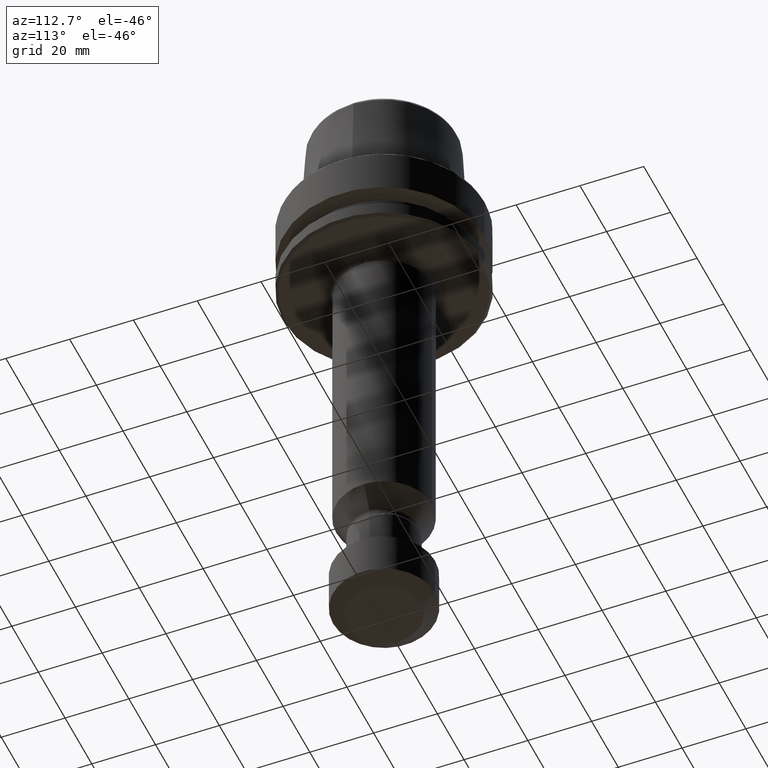
[diagram: clean part render]
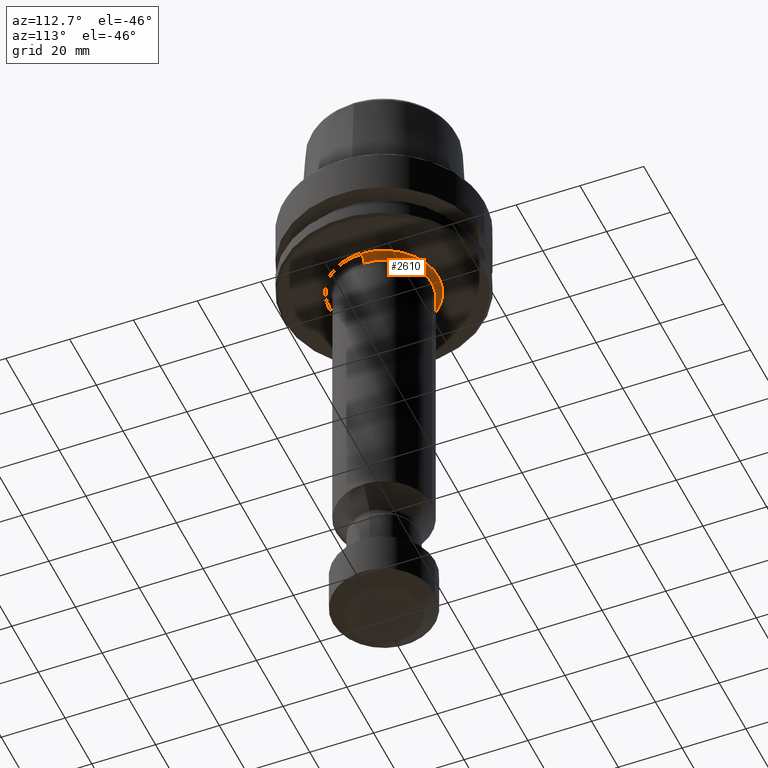
[diagram: same view with one face highlighted and labeled with its STEP entity id]
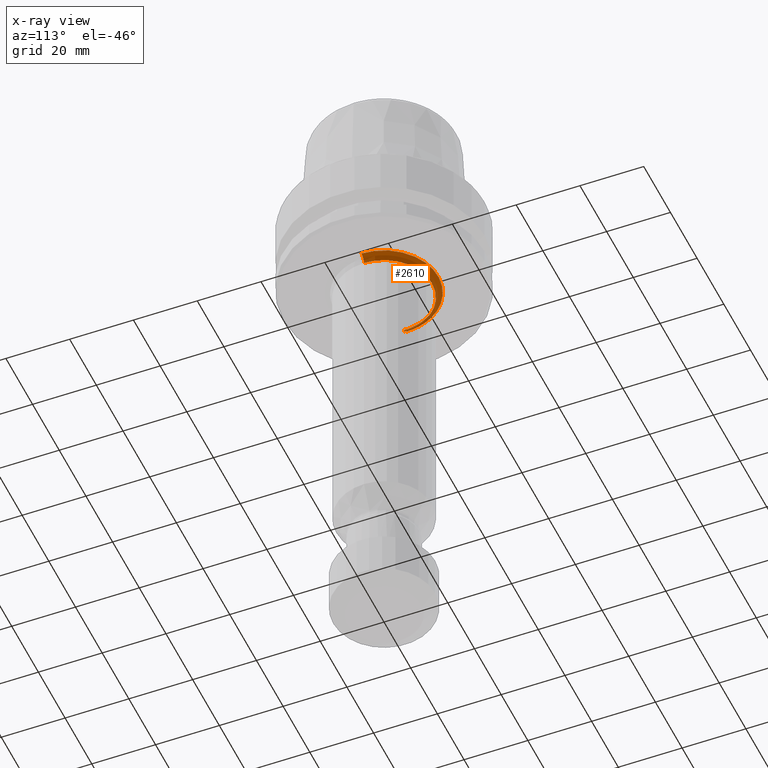
[diagram: x-ray of the same camera — body ghosted, the highlighted face saturated]
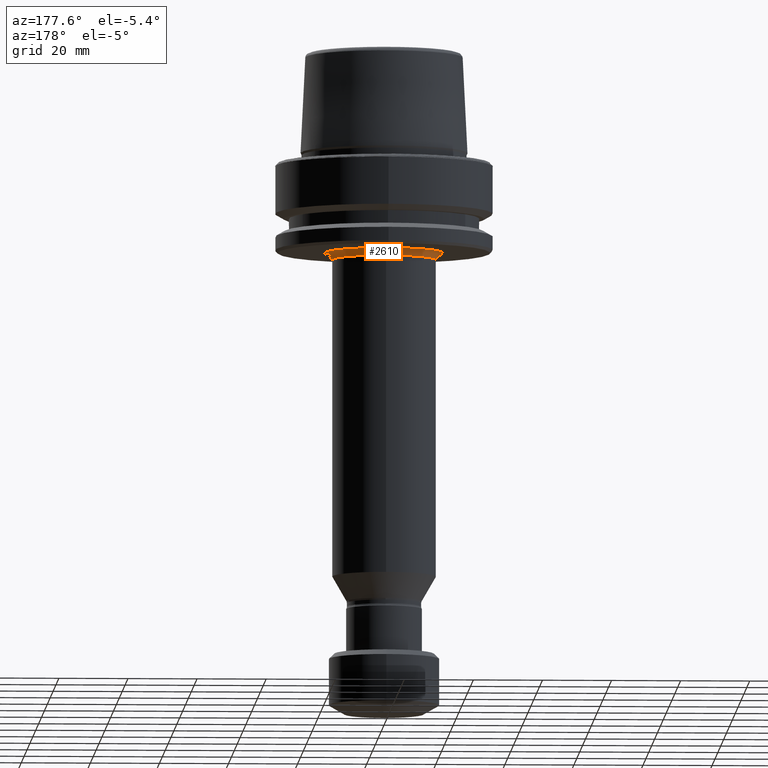
[diagram: same view with one face highlighted and labeled with its STEP entity id]
A machine part, auxiliary view. The second image highlights one B-rep face of the part: STEP entity #2610.
The next image is the same camera in x-ray: the body ghosted, the highlighted face saturated — about 8% of this face is hidden behind the body in this view.
A second angle (auxiliary view) of the same face is appended — the face is thin or edge-on in the first view.
In plain terms, the highlighted face is a freeform B-spline surface patch.
Its self-contained STEP definition (entity closure, byte-faithful):
#3 = CIRCLE ( 'NONE', #335, 15.00000000000000000 ) ;
#23 = CARTESIAN_POINT ( 'NONE',  ( -9.647156264525051500, 13.99763926153691100, -26.00000000000001100 ) ) ;
#42 = CARTESIAN_POINT ( 'NONE',  ( -11.40718896748278700, 12.60828393399529700, -26.00000000000000400 ) ) ;
#66 = CARTESIAN_POINT ( 'NONE',  ( -9.940187602023494100, 13.79468661339041600, -26.00000000000000700 ) ) ;
#88 = ORIENTED_EDGE ( 'NONE', *, *, #1571, .T. ) ;
#92 = CARTESIAN_POINT ( 'NONE',  ( -10.32283768817465500, 13.51352612423026800, -26.00000000000000000 ) ) ;
#94 = CARTESIAN_POINT ( 'NONE',  ( 15.00000000000000000, 0.0000000000000000000, -26.82842712599999800 ) ) ;
#104 = CARTESIAN_POINT ( 'NONE',  ( -10.75516065195249700, 13.16703087652168800, -26.00000000000000700 ) ) ;
#106 = CARTESIAN_POINT ( 'NONE',  ( 15.00000000000000000, -1.077523541144796300E-009, -27.99999999999999600 ) ) ;
#120 =( BOUNDED_CURVE ( )  B_SPLINE_CURVE ( 3, ( #2083, #586, #2444, #1287 ),
 .UNSPECIFIED., .F., .F. ) 
 B_SPLINE_CURVE_WITH_KNOTS ( ( 4, 4 ),
 ( 0.0000000000000000000, 1.000000000000000000 ),
 .UNSPECIFIED. ) 
 CURVE ( )  GEOMETRIC_REPRESENTATION_ITEM ( )  RATIONAL_B_SPLINE_CURVE ( ( 0.9565783023873429800, 0.7697947704079430900, 0.7697947703221912400, 0.9565783021300871000 ) ) 
 REPRESENTATION_ITEM ( '' )  );
#121 = CARTESIAN_POINT ( 'NONE',  ( -10.96779659965844500, 12.98916458341195900, -26.00000000000001100 ) ) ;
#123 = ORIENTED_EDGE ( 'NONE', *, *, #654, .T. ) ;
#153 = DIRECTION ( 'NONE',  ( 0.0000000000000000000, 0.0000000000000000000, 1.000000000000000000 ) ) ;
#154 = CARTESIAN_POINT ( 'NONE',  ( -11.05817081992179900, 12.91194645723877200, -26.00000000000000400 ) ) ;
#172 = EDGE_LOOP ( 'NONE', ( #88, #806, #1376, #123, #1172 ) ) ;
#185 = CARTESIAN_POINT ( 'NONE',  ( -11.11825241751721700, 12.86024776982542200, -26.00000000000000700 ) ) ;
#188 = CARTESIAN_POINT ( 'NONE',  ( -11.14944384421238300, 12.83321108289902000, -26.00000000000000400 ) ) ;
#250 = CARTESIAN_POINT ( 'NONE',  ( -11.74241451338749100, 12.29951821889429600, -26.00000000000000700 ) ) ;
#295 = CARTESIAN_POINT ( 'NONE',  ( -12.11875040131196200, 11.92378156395837300, -26.00000000000000700 ) ) ;
#309 = CARTESIAN_POINT ( 'NONE',  ( -12.46060636964964800, 11.56436640063805200, -26.00000000000000400 ) ) ;
#315 = CARTESIAN_POINT ( 'NONE',  ( -12.38149936781433000, 11.64902806564135700, -26.00000000000000000 ) ) ;
#318 = CARTESIAN_POINT ( 'NONE',  ( -12.43350442533953000, 11.59350497358883400, -26.00000000000000700 ) ) ;
#335 = AXIS2_PLACEMENT_3D ( 'NONE', #1496, #153, #1688 ) ;
#367 = CARTESIAN_POINT ( 'NONE',  ( -12.68236215214468700, 11.32441305218912400, -26.00000000000001100 ) ) ;
#371 = CARTESIAN_POINT ( 'NONE',  ( -15.17620408239110900, 7.661003371127924800, -26.00000000000000700 ) ) ;
#378 = CARTESIAN_POINT ( 'NONE',  ( -13.44610155534271600, 10.40247710365459400, -26.00000000000001100 ) ) ;
#382 = CARTESIAN_POINT ( 'NONE',  ( -13.28972600791165500, 10.60284131153130400, -26.00000000000001100 ) ) ;
#400 = CARTESIAN_POINT ( 'NONE',  ( 6.706845463135679500, 15.62269563764839700, -26.00000000000001800 ) ) ;
#414 = CARTESIAN_POINT ( 'NONE',  ( -13.52336041527243200, 10.30150266361530100, -26.00000000000000000 ) ) ;
#420 = CARTESIAN_POINT ( 'NONE',  ( -13.55627230228821400, 10.25805811729110900, -26.00000000000000400 ) ) ;
#422 = CARTESIAN_POINT ( 'NONE',  ( -15.00000000000000000, -3.691861713275960800E-009, -27.99999999999999600 ) ) ;
#432 = CARTESIAN_POINT ( 'NONE',  ( -9.612090290506479600, 14.02174557289354300, -26.00000000000001100 ) ) ;
#442 = CARTESIAN_POINT ( 'NONE',  ( -13.57816932630893300, 10.22905735611779200, -26.00000000000000700 ) ) ;
#453 = CARTESIAN_POINT ( 'NONE',  ( -13.58988373676121400, 10.21348749009063400, -26.00000000000000400 ) ) ;
#464 = CARTESIAN_POINT ( 'NONE',  ( -14.37662306357473900, 9.100880302218154600, -26.00000000000000700 ) ) ;
#469 = CARTESIAN_POINT ( 'NONE',  ( -13.92372040202458000, 9.768400300886966600, -26.00000000000000000 ) ) ;
#513 = CARTESIAN_POINT ( 'NONE',  ( -14.84782310272869100, 8.286896181649396500, -26.00000000000000700 ) ) ;
#553 = CARTESIAN_POINT ( 'NONE',  ( 15.00000000000000000, -1.077523541144796300E-009, -27.99999999999999600 ) ) ;
#558 = CARTESIAN_POINT ( 'NONE',  ( 15.82842712400000500, 0.0000000000000000000, -26.00000000100000400 ) ) ;
#562 = CARTESIAN_POINT ( 'NONE',  ( -15.22884932485959700, 7.555404176033091400, -26.00000000000000400 ) ) ;
#572 = CARTESIAN_POINT ( 'NONE',  ( -15.25122009931264700, 7.510029484869273900, -26.00000000000000400 ) ) ;
#586 = CARTESIAN_POINT ( 'NONE',  ( -15.00000000000000000, 0.0000000000000000000, -26.82842712599999800 ) ) ;
#587 = CARTESIAN_POINT ( 'NONE',  ( -15.27429668038375800, 7.462980148546568800, -26.00000000000001100 ) ) ;
#606 = CARTESIAN_POINT ( 'NONE',  ( -15.49216912477989200, 7.016095908826447800, -26.00000000000000700 ) ) ;
#616 = CARTESIAN_POINT ( 'NONE',  ( -15.26609139954375700, 7.479753492256499200, -26.00000000000000700 ) ) ;
#654 = EDGE_CURVE ( 'NONE', #2175, #656, #120, .T. ) ;
#656 = VERTEX_POINT ( 'NONE', #1682 ) ;
#701 = CARTESIAN_POINT ( 'NONE',  ( -15.78050945205662700, 6.354909413765298600, -26.00000000000000700 ) ) ;
#737 = CARTESIAN_POINT ( 'NONE',  ( -16.19762457022040200, 5.163615565036729500, -26.00000000000001400 ) ) ;
#742 = CARTESIAN_POINT ( 'NONE',  ( -12.96954360276308000, 10.99723103847711600, -25.99999999999999600 ) ) ;
#751 = CARTESIAN_POINT ( 'NONE',  ( -16.06691766936300100, 5.563972322457834400, -26.00000000000000700 ) ) ;
#777 =( BOUNDED_CURVE ( )  B_SPLINE_CURVE ( 3, ( #2439, #558, #94, #106 ),
 .UNSPECIFIED., .F., .F. ) 
 B_SPLINE_CURVE_WITH_KNOTS ( ( 4, 4 ),
 ( 0.0000000000000000000, 1.000000000000000000 ),
 .UNSPECIFIED. ) 
 CURVE ( )  GEOMETRIC_REPRESENTATION_ITEM ( )  RATIONAL_B_SPLINE_CURVE ( ( 0.9565783021300871000, 0.7697947703221912400, 0.7697947704079430900, 0.9565783023873429800 ) ) 
 REPRESENTATION_ITEM ( '' )  );
#794 = AXIS2_PLACEMENT_3D ( 'NONE', #853, #1680, #2548 ) ;
#806 = ORIENTED_EDGE ( 'NONE', *, *, #1067, .T. ) ;
#810 = CARTESIAN_POINT ( 'NONE',  ( -16.25985371870015700, 4.962215133384347600, -26.00000000000000400 ) ) ;
#819 = CARTESIAN_POINT ( 'NONE',  ( 16.99999999918119900, 0.3776924275719731900, -26.00000000000000000 ) ) ;
#836 = CARTESIAN_POINT ( 'NONE',  ( -16.30301991502808400, 4.817855767602949000, -25.99999999999999300 ) ) ;
#842 = CARTESIAN_POINT ( 'NONE',  ( 16.99999999938484100, 3.727308970728297600E-009, -26.00000000000000000 ) ) ;
#851 = CARTESIAN_POINT ( 'NONE',  ( -16.29018721745279300, 4.861209404322699400, -26.00000000000000700 ) ) ;
#853 = CARTESIAN_POINT ( 'NONE',  ( 0.0000000000000000000, 0.0000000000000000000, -27.99999999999999600 ) ) ;
#856 = CARTESIAN_POINT ( 'NONE',  ( -16.31625896462853500, 4.772824967047387900, -26.00000000000000400 ) ) ;
#863 = CARTESIAN_POINT ( 'NONE',  ( 16.98119468944758000, 0.9430413942550678300, -26.00000000000000400 ) ) ;
#867 = CARTESIAN_POINT ( 'NONE',  ( 16.92634586939123100, 1.600533258037655200, -26.00000000000001100 ) ) ;
#879 = CARTESIAN_POINT ( 'NONE',  ( 16.89069413635457600, 1.928758707258705800, -25.99999999999999600 ) ) ;
#888 = CARTESIAN_POINT ( 'NONE',  ( 16.87081143908416800, 2.092741311201646000, -26.00000000000000700 ) ) ;
#893 = CARTESIAN_POINT ( 'NONE',  ( -16.31153785267413900, 4.788938794873819100, -26.00000000000001100 ) ) ;
#903 = CARTESIAN_POINT ( 'NONE',  ( 16.86035588276091700, 2.174700083006250400, -26.00000000000000000 ) ) ;
#918 = CARTESIAN_POINT ( 'NONE',  ( -16.43971310594719500, 4.349601046917640300, -26.00000000000000000 ) ) ;
#929 = CARTESIAN_POINT ( 'NONE',  ( 16.85576474268923900, 2.209818300172448100, -26.00000000000000000 ) ) ;
#933 = CARTESIAN_POINT ( 'NONE',  ( 16.85267949656107000, 2.233228895894351100, -26.00000000000000700 ) ) ;
#938 = CARTESIAN_POINT ( 'NONE',  ( -5.590991011447757200, 16.05595171354687500, -26.00000000000000700 ) ) ;
#940 =( BOUNDED_SURFACE ( )  B_SPLINE_SURFACE ( 3, 3, ( 
 ( #2228, #1761, #1960, #1961 ),
 ( #1967, #1980, #2000, #2073 ),
 ( #2079, #2120, #2097, #2122 ),
 ( #2154, #2155, #2161, #2257 ),
 ( #2265, #2273, #2314, #2334 ),
 ( #2333, #2363, #2426, #2440 ),
 ( #2450, #2485, #2525, #2514 ) ),
 .UNSPECIFIED., .F., .F., .T. ) 
 B_SPLINE_SURFACE_WITH_KNOTS ( ( 4, 3, 4 ),
 ( 4, 4 ),
 ( 0.06314145665486380100, 0.9368585429440140500, 0.9455957138069055500 ),
 ( 0.0000000000000000000, 1.000000000000000000 ),
 .UNSPECIFIED. ) 
 GEOMETRIC_REPRESENTATION_ITEM ( )  RATIONAL_B_SPLINE_SURFACE ( (
 ( 0.9565783023873429800, 0.3188594341291140500, 0.3188594341291140500, 0.9565783023873429800),
 ( 0.7697947704079430900, 0.2565982568026480300, 0.2565982568026480300, 0.7697947704079430900),
 ( 0.7697947703221912400, 0.2565982567740640000, 0.2565982567740640000, 0.7697947703221912400),
 ( 0.9565783021300871000, 0.3188594340433620300, 0.3188594340433620300, 0.9565783021300871000),
 ( 0.9565783021300871000, 0.3188594340433620300, 0.3188594340433620300, 0.9565783021300871000),
 ( 0.9565783021300871000, 0.3188594340433620300, 0.3188594340433620300, 0.9565783021300871000),
 ( 0.9565783021300871000, 0.3188594340433620300, 0.3188594340433620300, 0.9565783021300871000) ) ) 
 REPRESENTATION_ITEM ( '' )  SURFACE ( )  );
#942 = CARTESIAN_POINT ( 'NONE',  ( 16.85133050372439100, 2.243395881769888200, -26.00000000000000000 ) ) ;
#950 = CARTESIAN_POINT ( 'NONE',  ( 16.79282208412595900, 2.680358328449334000, -26.00000000000000400 ) ) ;
#972 = CARTESIAN_POINT ( 'NONE',  ( 16.68407581597388800, 3.311069552728886900, -25.99999999999999600 ) ) ;
#981 = CARTESIAN_POINT ( 'NONE',  ( -16.59569262625943200, 3.728881478310603000, -26.00000000000001100 ) ) ;
#985 = CARTESIAN_POINT ( 'NONE',  ( -16.73638598866200100, 2.995746654446077800, -26.00000000000000700 ) ) ;
#991 = CARTESIAN_POINT ( 'NONE',  ( 16.51582972314454500, 4.038375910784454300, -26.00000000000000000 ) ) ;
#995 = CARTESIAN_POINT ( 'NONE',  ( -16.79641198370620000, 2.626938744058072500, -26.00000000000000700 ) ) ;
#1021 = CARTESIAN_POINT ( 'NONE',  ( 16.42136281506691700, 4.399898238911236900, -26.00000000000000700 ) ) ;
#1025 = CARTESIAN_POINT ( 'NONE',  ( -16.82384480968902800, 2.441974664250130500, -26.00000000000000700 ) ) ;
#1036 = CARTESIAN_POINT ( 'NONE',  ( 16.37154339561233500, 4.580126690249398900, -26.00000000000000400 ) ) ;
#1057 = CARTESIAN_POINT ( 'NONE',  ( -16.83691617979560800, 2.349352593192678200, -26.00000000000000400 ) ) ;
#1059 = CARTESIAN_POINT ( 'NONE',  ( -17.00000000079964500, 3.727308392487138600E-009, -26.00000000000000700 ) ) ;
#1067 = EDGE_CURVE ( 'NONE', #2103, #1807, #3, .T. ) ;
#1071 = CARTESIAN_POINT ( 'NONE',  ( -16.84799041216786000, 2.268335583505176600, -26.00000000000000000 ) ) ;
#1085 = CARTESIAN_POINT ( 'NONE',  ( 16.34598719453112300, 4.670107737737172500, -26.00000000000000400 ) ) ;
#1088 = CARTESIAN_POINT ( 'NONE',  ( -16.84599178394218200, 2.283137291732381800, -26.00000000000000400 ) ) ;
#1092 = CARTESIAN_POINT ( 'NONE',  ( -16.99999999918118500, 0.7557261884630278600, -25.99999999999999600 ) ) ;
#1099 = CARTESIAN_POINT ( 'NONE',  ( -16.94985250655823000, 1.507938577807351500, -26.00000000000000400 ) ) ;
#1145 = CARTESIAN_POINT ( 'NONE',  ( 16.33489600306332100, 4.708642505621647000, -26.00000000000000400 ) ) ;
#1151 = CARTESIAN_POINT ( 'NONE',  ( 16.32747109011555900, 4.734326009059806500, -25.99999999999999600 ) ) ;
#1172 = ORIENTED_EDGE ( 'NONE', *, *, #1178, .F. ) ;
#1177 = CARTESIAN_POINT ( 'NONE',  ( 16.32421794116105200, 4.745536864055036800, -26.00000000000000400 ) ) ;
#1178 = EDGE_CURVE ( 'NONE', #2230, #656, #2342, .T. ) ;
#1188 = CARTESIAN_POINT ( 'NONE',  ( 16.18502585690640700, 5.222820342672882500, -26.00000000000000700 ) ) ;
#1195 = CARTESIAN_POINT ( 'NONE',  ( 15.95390760973257300, 5.906115375114203500, -26.00000000000000400 ) ) ;
#1199 = CARTESIAN_POINT ( 'NONE',  ( 15.63411984569950900, 6.684155819616573300, -26.00000000000001100 ) ) ;
#1202 = CARTESIAN_POINT ( 'NONE',  ( 15.46168851143372800, 7.068391768531292000, -26.00000000000000400 ) ) ;
#1244 = CARTESIAN_POINT ( 'NONE',  ( 15.37233848123854300, 7.259313674654545200, -26.00000000000000000 ) ) ;
#1254 = CARTESIAN_POINT ( 'NONE',  ( 15.32687987537537900, 7.354475610632641200, -26.00000000000000400 ) ) ;
#1263 = CARTESIAN_POINT ( 'NONE',  ( -6.473660463908267100, 15.72279917330234300, -26.00000000000000700 ) ) ;
#1271 = CARTESIAN_POINT ( 'NONE',  ( 15.30722970341280800, 7.395195222391070200, -26.00000000000000400 ) ) ;
#1287 = CARTESIAN_POINT ( 'NONE',  ( -17.00000000079964500, 3.727308392487138600E-009, -26.00000000000000700 ) ) ;
#1288 = CARTESIAN_POINT ( 'NONE',  ( 15.29409227492512700, 7.422327391321283100, -26.00000000000000400 ) ) ;
#1306 = CARTESIAN_POINT ( 'NONE',  ( 15.28828640665210700, 7.434283152958563800, -26.00000000000000400 ) ) ;
#1317 = CARTESIAN_POINT ( 'NONE',  ( 15.04449788419245100, 7.934399767642448300, -26.00000000000001100 ) ) ;
#1323 = CARTESIAN_POINT ( 'NONE',  ( 14.65708478104499000, 8.641941166660535200, -26.00000000000000400 ) ) ;
#1335 = CARTESIAN_POINT ( 'NONE',  ( 14.14768249948946800, 9.432579470358877700, -26.00000000000000700 ) ) ;
#1341 = CARTESIAN_POINT ( 'NONE',  ( 16.99999999938484100, 3.727308970728297600E-009, -26.00000000000000000 ) ) ;
#1375 = CARTESIAN_POINT ( 'NONE',  ( -12.30322819969978500, 11.73203573966089900, -26.00000000000000000 ) ) ;
#1376 = ORIENTED_EDGE ( 'NONE', *, *, #2238, .T. ) ;
#1405 = CARTESIAN_POINT ( 'NONE',  ( 13.87862627674083500, 9.819191956752336000, -26.00000000000000400 ) ) ;
#1412 = CARTESIAN_POINT ( 'NONE',  ( 13.74050939487379400, 10.01032153358516800, -26.00000000000000700 ) ) ;
#1454 = CARTESIAN_POINT ( 'NONE',  ( 13.67055376131709300, 10.10534215541058800, -26.00000000000000400 ) ) ;
#1458 = CARTESIAN_POINT ( 'NONE',  ( 13.64038051994497800, 10.14594867192342200, -26.00000000000001400 ) ) ;
#1496 = CARTESIAN_POINT ( 'NONE',  ( 0.0000000000000000000, 0.0000000000000000000, -27.99999999999999600 ) ) ;
#1528 = CARTESIAN_POINT ( 'NONE',  ( 13.62022230223864300, 10.17299377023716600, -25.99999999999999600 ) ) ;
#1564 = CARTESIAN_POINT ( 'NONE',  ( 1.836970198721029600E-015, 14.99999999999995600, -27.99999999999999600 ) ) ;
#1567 = CARTESIAN_POINT ( 'NONE',  ( 13.61089059393513200, 10.18547828135360300, -26.00000000000000400 ) ) ;
#1571 = EDGE_CURVE ( 'NONE', #2230, #2103, #777, .T. ) ;
#1598 = CARTESIAN_POINT ( 'NONE',  ( 13.42575048590195600, 10.43234748999026900, -26.00000000000000400 ) ) ;
#1602 = CARTESIAN_POINT ( 'NONE',  ( 13.15571908853134000, 10.77382122259748900, -26.00000000000000400 ) ) ;
#1613 = FACE_OUTER_BOUND ( 'NONE', #172, .T. ) ;
#1623 = CARTESIAN_POINT ( 'NONE',  ( 12.82553248565490000, 11.15987411352110600, -26.00000000000000400 ) ) ;
#1628 = CARTESIAN_POINT ( 'NONE',  ( -5.018015430314104500, 16.24899351219907800, -26.00000000000000000 ) ) ;
#1633 = CARTESIAN_POINT ( 'NONE',  ( 12.65665169106399500, 11.34981727637004800, -26.00000000000000400 ) ) ;
#1646 = CARTESIAN_POINT ( 'NONE',  ( 12.58346260199232900, 11.43056078560253400, -26.00000000000000000 ) ) ;
#1679 = CARTESIAN_POINT ( 'NONE',  ( 12.53448951912775500, 11.48424296877597300, -26.00000000000001800 ) ) ;
#1680 = DIRECTION ( 'NONE',  ( 0.0000000000000000000, 0.0000000000000000000, 1.000000000000000000 ) ) ;
#1682 = CARTESIAN_POINT ( 'NONE',  ( -17.00000000079964500, 3.727308392487138600E-009, -26.00000000000000700 ) ) ;
#1688 = DIRECTION ( 'NONE',  ( 1.000000000000000000, 0.0000000000000000000, -2.312964634635743000E-016 ) ) ;
#1692 = CARTESIAN_POINT ( 'NONE',  ( 12.51104193519670600, 11.50978870937391600, -26.00000000000000700 ) ) ;
#1700 = CARTESIAN_POINT ( 'NONE',  ( 12.27887762776825300, 11.76103458230221600, -26.00000000000001400 ) ) ;
#1717 = CARTESIAN_POINT ( 'NONE',  ( 11.96070595909149900, 12.08734611341960300, -26.00000000000000000 ) ) ;
#1720 = CARTESIAN_POINT ( 'NONE',  ( 11.57442197611737800, 12.45284770901263200, -26.00000000000000000 ) ) ;
#1757 = CARTESIAN_POINT ( 'NONE',  ( -6.079698091199317900, 15.87590397930531300, -26.00000000000000400 ) ) ;
#1761 = CARTESIAN_POINT ( 'NONE',  ( 15.00000000000000000, 30.00000000000000000, -28.00000000000000400 ) ) ;
#1762 = CARTESIAN_POINT ( 'NONE',  ( 11.37750905891751300, 12.63179970913148500, -26.00000000000001100 ) ) ;
#1791 = CARTESIAN_POINT ( 'NONE',  ( 11.29230975317910300, 12.70767939539437700, -26.00000000000000000 ) ) ;
#1793 = CARTESIAN_POINT ( 'NONE',  ( 11.23533064812907900, 12.75808495777545200, -26.00000000000000000 ) ) ;
#1799 = CARTESIAN_POINT ( 'NONE',  ( -15.06912652247535300, 7.871101424167921600, -26.00000000000000000 ) ) ;
#1800 = CIRCLE ( 'NONE', #794, 15.00000000000000000 ) ;
#1807 = VERTEX_POINT ( 'NONE', #1564 ) ;
#1818 = CARTESIAN_POINT ( 'NONE',  ( 11.20792125413427200, 12.78217618692105600, -26.00000000000000400 ) ) ;
#1850 = CARTESIAN_POINT ( 'NONE',  ( 10.93936968810763200, 13.01656310181901300, -26.00000000000001800 ) ) ;
#1867 = CARTESIAN_POINT ( 'NONE',  ( 10.57303944960433700, 13.31867976881345300, -26.00000000000000400 ) ) ;
#1873 = CARTESIAN_POINT ( 'NONE',  ( 10.13119657469859400, 13.65295057945203400, -26.00000000000000400 ) ) ;
#1895 = CARTESIAN_POINT ( 'NONE',  ( 9.906660738082720700, 13.81553632622424400, -26.00000000000001100 ) ) ;
#1900 = CARTESIAN_POINT ( 'NONE',  ( 9.809656579712438400, 13.88424100515225000, -26.00000000000000000 ) ) ;
#1923 = CARTESIAN_POINT ( 'NONE',  ( 9.744815026553050400, 13.92982747403058700, -26.00000000000001400 ) ) ;
#1937 = CARTESIAN_POINT ( 'NONE',  ( 9.713453418954911100, 13.95171910311438300, -26.00000000000000400 ) ) ;
#1947 = CARTESIAN_POINT ( 'NONE',  ( 9.409810366584588700, 14.16204788077062900, -26.00000000000000400 ) ) ;
#1952 = CARTESIAN_POINT ( 'NONE',  ( 8.997417252203099700, 14.43038094487218200, -26.00000000000001100 ) ) ;
#1955 = CARTESIAN_POINT ( 'NONE',  ( 8.503104457454503200, 14.72225190063712900, -26.00000000000000700 ) ) ;
#1960 = CARTESIAN_POINT ( 'NONE',  ( -15.00000000000000000, 30.00000000000000000, -28.00000000000000400 ) ) ;
#1961 = CARTESIAN_POINT ( 'NONE',  ( -15.00000000000000000, 0.0000000000000000000, -28.00000000000000400 ) ) ;
#1962 = CARTESIAN_POINT ( 'NONE',  ( 8.252651186421003300, 14.86289130709790000, -26.00000000000001100 ) ) ;
#1967 = CARTESIAN_POINT ( 'NONE',  ( 14.99999999999999800, 0.0000000000000000000, -26.82842712599999800 ) ) ;
#1968 = CARTESIAN_POINT ( 'NONE',  ( 8.144607597336806400, 14.92203046599071600, -26.00000000000000400 ) ) ;
#1980 = CARTESIAN_POINT ( 'NONE',  ( 15.00000000000000000, 30.00000000000000000, -26.82842712599999800 ) ) ;
#2000 = CARTESIAN_POINT ( 'NONE',  ( -15.00000000000000000, 30.00000000000000000, -26.82842712599999800 ) ) ;
#2001 = CARTESIAN_POINT ( 'NONE',  ( 8.072421543963574900, 14.96120437804204100, -26.00000000000000700 ) ) ;
#2009 = CARTESIAN_POINT ( 'NONE',  ( 8.037293543374531200, 14.98010865066766300, -26.00000000000000700 ) ) ;
#2020 = CARTESIAN_POINT ( 'NONE',  ( 7.701651649535907800, 15.15913078815629900, -26.00000000000001100 ) ) ;
#2021 = CARTESIAN_POINT ( 'NONE',  ( -5.834791823306362700, 15.96755372587060200, -26.00000000000000700 ) ) ;
#2057 = CARTESIAN_POINT ( 'NONE',  ( 6.315966820652517900, 15.78339758797682900, -26.00000000000000000 ) ) ;
#2070 = CARTESIAN_POINT ( 'NONE',  ( 6.239085491705920600, 15.81395577495741600, -26.00000000000000400 ) ) ;
#2073 = CARTESIAN_POINT ( 'NONE',  ( -14.99999999999999800, 0.0000000000000000000, -26.82842712599999800 ) ) ;
#2076 = CARTESIAN_POINT ( 'NONE',  ( 5.836110861881858000, 15.97059199069393600, -26.00000000000000400 ) ) ;
#2079 = CARTESIAN_POINT ( 'NONE',  ( 15.82842712400000500, 0.0000000000000000000, -26.00000000099999700 ) ) ;
#2080 = CARTESIAN_POINT ( 'NONE',  ( 5.347591686321499600, 16.14352872738895100, -26.00000000000001100 ) ) ;
#2083 = CARTESIAN_POINT ( 'NONE',  ( -15.00000000000000000, -3.691861713275960800E-009, -27.99999999999999600 ) ) ;
#2092 = CARTESIAN_POINT ( 'NONE',  ( 4.768990813567698200, 16.31899148970267900, -26.00000000000001400 ) ) ;
#2097 = CARTESIAN_POINT ( 'NONE',  ( -15.82842712400000100, 31.65685424800000900, -26.00000000100000000 ) ) ;
#2103 = VERTEX_POINT ( 'NONE', #553 ) ;
#2120 = CARTESIAN_POINT ( 'NONE',  ( 15.82842712400000100, 31.65685424800000900, -26.00000000100000000 ) ) ;
#2122 = CARTESIAN_POINT ( 'NONE',  ( -15.82842712400000500, 0.0000000000000000000, -26.00000000099999700 ) ) ;
#2133 = CARTESIAN_POINT ( 'NONE',  ( 4.519162903544612100, 16.38855479558775100, -26.00000000000000400 ) ) ;
#2135 = CARTESIAN_POINT ( 'NONE',  ( 4.352198495214935300, 16.43367810599539800, -25.99999999999999600 ) ) ;
#2141 = CARTESIAN_POINT ( 'NONE',  ( 4.269722757118330500, 16.45530561929319500, -26.00000000000000000 ) ) ;
#2150 = CARTESIAN_POINT ( 'NONE',  ( 3.844185893595819100, 16.56339290347440900, -26.00000000000000400 ) ) ;
#2154 = CARTESIAN_POINT ( 'NONE',  ( 16.99999999900000000, 0.0000000000000000000, -26.00000000000000700 ) ) ;
#2155 = CARTESIAN_POINT ( 'NONE',  ( 16.99999999900000000, 33.99999999800000700, -26.00000000000000400 ) ) ;
#2161 = CARTESIAN_POINT ( 'NONE',  ( -16.99999999900000000, 33.99999999800000700, -26.00000000000000400 ) ) ;
#2175 = VERTEX_POINT ( 'NONE', #422 ) ;
#2187 = CARTESIAN_POINT ( 'NONE',  ( 3.330378292106551900, 16.67709292438484100, -26.00000000000001100 ) ) ;
#2188 = CARTESIAN_POINT ( 'NONE',  ( 2.811825642723915700, 16.76678586513476800, -26.00000000000000400 ) ) ;
#2228 = CARTESIAN_POINT ( 'NONE',  ( 15.00000000000000000, 0.0000000000000000000, -28.00000000000000400 ) ) ;
#2230 = VERTEX_POINT ( 'NONE', #1341 ) ;
#2238 = EDGE_CURVE ( 'NONE', #1807, #2175, #1800, .T. ) ;
#2244 = CARTESIAN_POINT ( 'NONE',  ( 2.465069421381405900, 16.82124625226573000, -26.00000000000000000 ) ) ;
#2255 = CARTESIAN_POINT ( 'NONE',  ( 2.292345282883400300, 16.84566072482983400, -26.00000000000000400 ) ) ;
#2257 = CARTESIAN_POINT ( 'NONE',  ( -16.99999999900000000, 0.0000000000000000000, -26.00000000000000700 ) ) ;
#2265 = CARTESIAN_POINT ( 'NONE',  ( 17.00942808941578800, 0.0000000000000000000, -25.99999999999195300 ) ) ;
#2273 = CARTESIAN_POINT ( 'NONE',  ( 17.00942808941578800, 34.01885617883158400, -25.99999999999196400 ) ) ;
#2274 = CARTESIAN_POINT ( 'NONE',  ( 1.414276455505264300, 16.95587849739660800, -26.00000000000000700 ) ) ;
#2287 = CARTESIAN_POINT ( 'NONE',  ( 0.7079673820558960400, 16.99997709435508500, -26.00000000000000400 ) ) ;
#2304 = CARTESIAN_POINT ( 'NONE',  ( -16.84237997208027000, 2.309627413206606100, -26.00000000000001100 ) ) ;
#2314 = CARTESIAN_POINT ( 'NONE',  ( -17.00942808941578800, 34.01885617883158400, -25.99999999999196400 ) ) ;
#2325 = CARTESIAN_POINT ( 'NONE',  ( 7.247701707742630900, 15.38413925716878300, -25.99999999999999600 ) ) ;
#2333 = CARTESIAN_POINT ( 'NONE',  ( 17.01885617983157700, 0.0000000000000000000, -25.99999999998390600 ) ) ;
#2334 = CARTESIAN_POINT ( 'NONE',  ( -17.00942808941578800, 0.0000000000000000000, -25.99999999999195300 ) ) ;
#2340 = CARTESIAN_POINT ( 'NONE',  ( -6.940226566767832700, 15.52527591234716700, -26.00000000000000000 ) ) ;
#2342 = B_SPLINE_CURVE_WITH_KNOTS ( 'NONE', 3,
 ( #842, #819, #863, #867, #879, #888, #903, #929, #933, #942, #950, #972, #991, #1021, #1036, #1085, #1145, #1151, #1177, #1188, #1195, #1199, #1202, #1244, #1254, #1271, #1288, #1306, #1317, #1323, #1335, #1405, #1412, #1454, #1458, #1528, #1567, #1598, #1602, #1623, #1633, #1646, #1679, #1692, #1700, #1717, #1720, #1762, #1791, #1793, #1818, #1850, #1867, #1873, #1895, #1900, #1923, #1937, #1947, #1952, #1955, #1962, #1968, #2001, #2009, #2020, #2325, #400, #2384, #2057, #2070, #2076, #2080, #2092, #2133, #2135, #2141, #2150, #2187, #2188, #2244, #2255, #2274, #2287, #2364, #2373, #2406, #2442, #2452, #2455, #2477, #2516, #2526, #2545, #2552, #2568, #1628, #938, #2021, #2577, #1757, #1263, #2340, #2585, #2595, #2604, #2616, #2621, #2625, #2646, #2656, #2660, #2685, #432, #23, #66, #92, #104, #121, #154, #185, #188, #42, #250, #295, #1375, #315, #318, #309, #367, #742, #382, #378, #414, #420, #442, #453, #469, #464, #513, #1799, #371, #562, #572, #616, #587, #606, #701, #751, #737, #810, #851, #836, #893, #856, #918, #981, #985, #995, #1025, #1057, #2304, #1088, #1071, #1099, #1092, #1059 ),
 .UNSPECIFIED., .F., .F.,
 ( 4, 1, 1, 1, 1, 1, 2, 2, 1, 1, 1, 1, 1, 2, 2, 1, 1, 1, 1, 1, 2, 2, 1, 1, 1, 1, 1, 2, 2, 1, 1, 1, 2, 2, 1, 1, 1, 2, 2, 1, 1, 1, 2, 2, 1, 1, 1, 2, 2, 1, 1, 2, 2, 1, 1, 2, 2, 1, 2, 2, 2, 1, 2, 2, 1, 1, 2, 2, 1, 1, 2, 2, 1, 1, 1, 2, 2, 1, 1, 1, 2, 2, 1, 1, 1, 2, 2, 1, 1, 1, 2, 2, 1, 1, 1, 1, 2, 2, 1, 1, 1, 1, 1, 2, 2, 1, 1, 1, 1, 1, 2, 2, 1, 1, 1, 1, 1, 2, 2, 4 ),
 ( 0.0000000000000000000, 0.03124999999999791100, 0.04687499999999686400, 0.05468749999999635700, 0.05859374999999610000, 0.06054687499999596900, 0.06152343749999589900, 0.06249999999999583700, 0.09374999999999419900, 0.1093749999999933900, 0.1171874999999929600, 0.1210937499999927700, 0.1230468749999926600, 0.1240234374999926400, 0.1249999999999926200, 0.1562499999999916200, 0.1718749999999911200, 0.1796874999999908400, 0.1835937499999907300, 0.1855468749999906200, 0.1865234374999906200, 0.1874999999999905900, 0.2187499999999898400, 0.2343749999999895100, 0.2421874999999893100, 0.2460937499999891800, 0.2480468749999891500, 0.2490234374999890900, 0.2499999999999890600, 0.2656249999999882900, 0.2734374999999879000, 0.2773437499999877300, 0.2792968749999876800, 0.2812499999999875700, 0.2968749999999871800, 0.3046874999999869000, 0.3085937499999868400, 0.3105468749999868400, 0.3124999999999868400, 0.3281249999999871200, 0.3359374999999872300, 0.3398437499999872300, 0.3417968749999871800, 0.3437499999999871800, 0.3593749999999866200, 0.3671874999999864000, 0.3710937499999862900, 0.3730468749999862300, 0.3749999999999861200, 0.3906249999999857300, 0.3984374999999854600, 0.4023437499999854000, 0.4062499999999852900, 0.4218749999999850100, 0.4296874999999849000, 0.4335937499999847900, 0.4374999999999846800, 0.4531249999999843500, 0.4609374999999841800, 0.4687499999999840100, 0.4999999999999833500, 0.5156249999999830100, 0.5234374999999827900, 0.5312499999999825700, 0.5468749999999822400, 0.5546874999999820100, 0.5585937499999819000, 0.5624999999999817900, 0.5781249999999815700, 0.5859374999999814600, 0.5898437499999814600, 0.5937499999999814600, 0.6093749999999809000, 0.6171874999999805700, 0.6210937499999804600, 0.6230468749999804600, 0.6249999999999804600, 0.6406249999999797900, 0.6484374999999795700, 0.6523437499999793500, 0.6542968749999792400, 0.6562499999999791300, 0.6718749999999785700, 0.6796874999999782400, 0.6835937499999781300, 0.6855468749999781300, 0.6874999999999781300, 0.7031249999999776800, 0.7109374999999773500, 0.7148437499999772400, 0.7167968749999771300, 0.7187499999999771300, 0.7343749999999769100, 0.7421874999999766900, 0.7460937499999766900, 0.7480468749999766900, 0.7490234374999766900, 0.7499999999999766900, 0.7812499999999770200, 0.7968749999999771300, 0.8046874999999772400, 0.8085937499999772400, 0.8105468749999772400, 0.8115234374999772400, 0.8124999999999773500, 0.8437499999999792400, 0.8593749999999802400, 0.8671874999999807900, 0.8710937499999810200, 0.8730468749999811300, 0.8740234374999813500, 0.8749999999999814600, 0.9062499999999859000, 0.9218749999999882300, 0.9296874999999892300, 0.9335937499999897900, 0.9355468749999901200, 0.9365234374999902300, 0.9374999999999904500, 1.000000000000000000 ),
 .UNSPECIFIED. ) ;
#2363 = CARTESIAN_POINT ( 'NONE',  ( 17.01885617983157700, 34.03771235966315300, -25.99999999998391300 ) ) ;
#2364 = CARTESIAN_POINT ( 'NONE',  ( -0.3539836910279498500, 17.00001145159423300, -26.00000000000001100 ) ) ;
#2373 = CARTESIAN_POINT ( 'NONE',  ( -0.8840628989748784400, 16.98348307592426900, -26.00000000000000400 ) ) ;
#2384 = CARTESIAN_POINT ( 'NONE',  ( 6.472639648479543900, 15.71980119356075000, -26.00000000000000700 ) ) ;
#2406 = CARTESIAN_POINT ( 'NONE',  ( -1.412797614029333000, 16.94213636881999800, -26.00000000000000400 ) ) ;
#2426 = CARTESIAN_POINT ( 'NONE',  ( -17.01885617983157700, 34.03771235966315300, -25.99999999998391300 ) ) ;
#2439 = CARTESIAN_POINT ( 'NONE',  ( 16.99999999938484100, 3.727308970728297600E-009, -26.00000000000000000 ) ) ;
#2440 = CARTESIAN_POINT ( 'NONE',  ( -17.01885617983157700, 0.0000000000000000000, -25.99999999998390600 ) ) ;
#2442 = CARTESIAN_POINT ( 'NONE',  ( -1.764988647867297800, 16.90905671265397100, -25.99999999999999600 ) ) ;
#2444 = CARTESIAN_POINT ( 'NONE',  ( -15.82842712400000500, 0.0000000000000000000, -26.00000000100000400 ) ) ;
#2450 = CARTESIAN_POINT ( 'NONE',  ( 17.02828427024736200, 0.0000000000000000000, -25.99999999997585900 ) ) ;
#2452 = CARTESIAN_POINT ( 'NONE',  ( -1.942477690890436600, 16.88956572208997600, -25.99999999999999600 ) ) ;
#2455 = CARTESIAN_POINT ( 'NONE',  ( -2.465239170442447700, 16.82398139384960000, -26.00000000000000400 ) ) ;
#2477 = CARTESIAN_POINT ( 'NONE',  ( -2.985105393594212700, 16.74234157932768600, -25.99999999999999600 ) ) ;
#2485 = CARTESIAN_POINT ( 'NONE',  ( 17.02828427024736500, 34.05656854049473700, -25.99999999997586300 ) ) ;
#2514 = CARTESIAN_POINT ( 'NONE',  ( -17.02828427024736200, 0.0000000000000000000, -25.99999999997585900 ) ) ;
#2516 = CARTESIAN_POINT ( 'NONE',  ( -3.586549288570837200, 16.61899802805945800, -26.00000000000000000 ) ) ;
#2525 = CARTESIAN_POINT ( 'NONE',  ( -17.02828427024736500, 34.05656854049473700, -25.99999999997586300 ) ) ;
#2526 = CARTESIAN_POINT ( 'NONE',  ( -3.843225236696437900, 16.56011569873179200, -26.00000000000001100 ) ) ;
#2545 = CARTESIAN_POINT ( 'NONE',  ( -4.014101264080154300, 16.51952285532321000, -26.00000000000000400 ) ) ;
#2548 = DIRECTION ( 'NONE',  ( 1.000000000000000000, 0.0000000000000000000, -2.312964634635743000E-016 ) ) ;
#2552 = CARTESIAN_POINT ( 'NONE',  ( -4.100806006094636300, 16.49820515565476600, -25.99999999999999600 ) ) ;
#2568 = CARTESIAN_POINT ( 'NONE',  ( -4.519852897690614500, 16.39179475802814400, -26.00000000000000400 ) ) ;
#2577 = CARTESIAN_POINT ( 'NONE',  ( -5.996934553104464900, 15.90736267002998100, -26.00000000000000700 ) ) ;
#2585 = CARTESIAN_POINT ( 'NONE',  ( -7.473723384086120800, 15.27068649383411100, -26.00000000000000700 ) ) ;
#2595 = CARTESIAN_POINT ( 'NONE',  ( -7.737764217074111900, 15.13735538106126000, -26.00000000000001100 ) ) ;
#2604 = CARTESIAN_POINT ( 'NONE',  ( -7.850344379282288000, 15.07891996054796200, -26.00000000000000400 ) ) ;
#2610 = ADVANCED_FACE ( 'NONE', ( #1613 ), #940, .F. ) ;
#2616 = CARTESIAN_POINT ( 'NONE',  ( -7.925268888579593000, 15.03967556575260500, -26.00000000000000700 ) ) ;
#2621 = CARTESIAN_POINT ( 'NONE',  ( -7.963786252836643000, 15.01931258121139800, -26.00000000000000400 ) ) ;
#2625 = CARTESIAN_POINT ( 'NONE',  ( -8.289709973838959900, 14.84549934380644500, -26.00000000000000000 ) ) ;
#2646 = CARTESIAN_POINT ( 'NONE',  ( -8.716956867308447000, 14.60150997320574400, -26.00000000000000700 ) ) ;
#2656 = CARTESIAN_POINT ( 'NONE',  ( -9.202604957589034700, 14.29543852956530100, -26.00000000000000400 ) ) ;
#2660 = CARTESIAN_POINT ( 'NONE',  ( -9.442227348037551600, 14.13704851326016000, -26.00000000000000400 ) ) ;
#2685 = CARTESIAN_POINT ( 'NONE',  ( -9.544236589367244500, 14.06801972888261800, -26.00000000000000700 ) ) ;